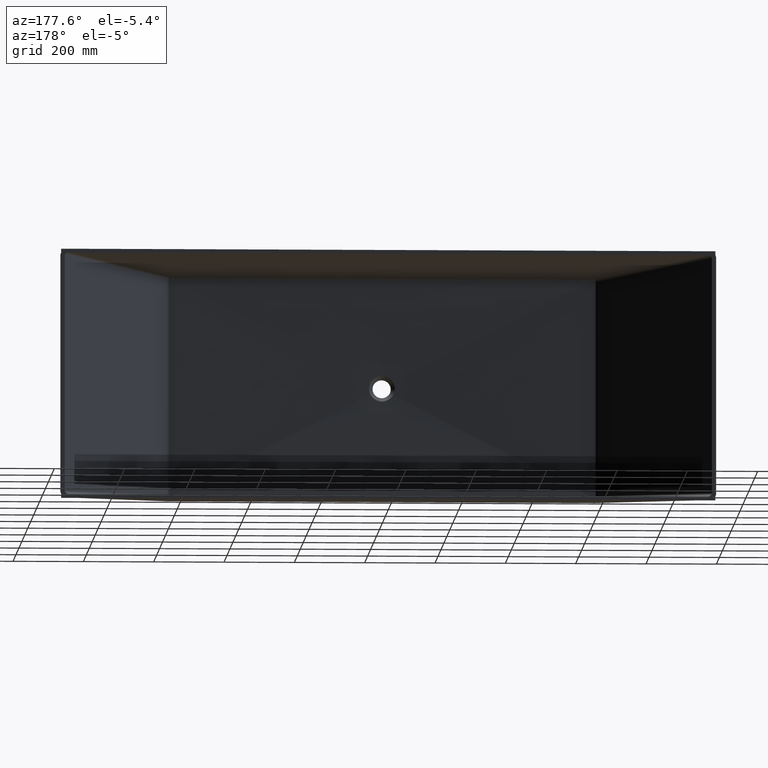
[diagram: clean part render]
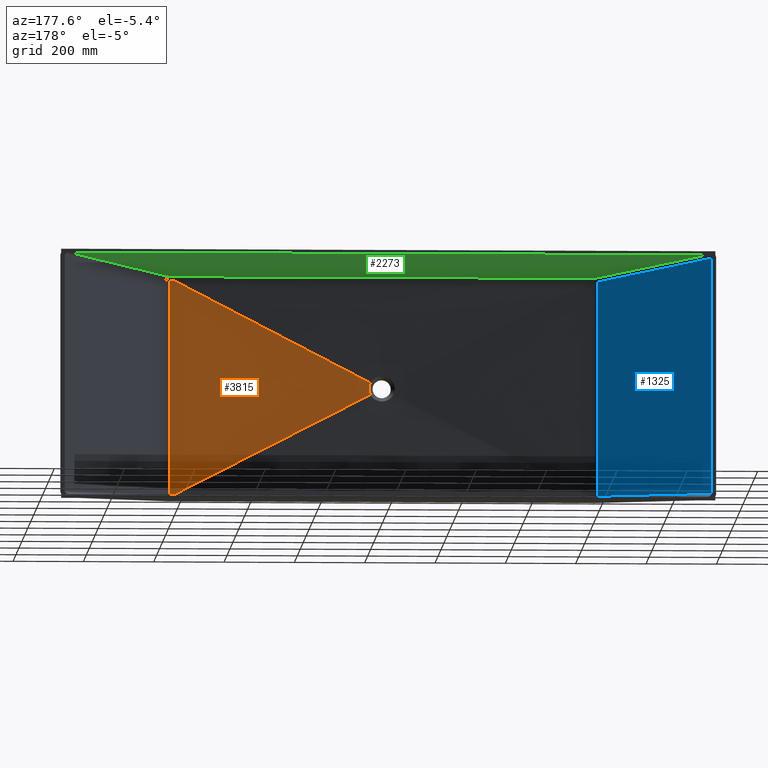
[diagram: same view with three faces highlighted in distinct colors, each labeled with its STEP entity id]
A machine part, auxiliary view with three faces highlighted in distinct colors.
Their STEP definitions:

[orange] entity #3815 — the highlighted face is a freeform B-spline surface patch.
#22 = CARTESIAN_POINT ( 'NONE',  ( 24.01391568218081600, -435.0000000000000000, -10.16292367194582800 ) ) ;
#42 = B_SPLINE_CURVE_WITH_KNOTS ( 'NONE', 3,
 ( #1183, #1118, #1220, #1251 ),
 .UNSPECIFIED., .F., .F.,
 ( 4, 4 ),
 ( 0.0000000000000000000, 0.01315349915786893900 ),
 .UNSPECIFIED. ) ;
#46 = CARTESIAN_POINT ( 'NONE',  ( 609.9999999999998900, -422.9999999999999400, -262.5000000000001700 ) ) ;
#238 = EDGE_CURVE ( 'NONE', #4479, #9330, #2665, .T. ) ;
#259 = VECTOR ( 'NONE', #3028, 1000.000000000000000 ) ;
#299 = EDGE_CURVE ( 'NONE', #4553, #4738, #42, .T. ) ;
#453 = CARTESIAN_POINT ( 'NONE',  ( 23.10164707771468400, -435.0000000000000000, -11.92953906472151500 ) ) ;
#498 = CARTESIAN_POINT ( 'NONE',  ( 609.9999999999998900, -422.9999999999999400, -210.0000000000002600 ) ) ;
#519 = CARTESIAN_POINT ( 'NONE',  ( 610.0000000000000000, -423.0000000000000000, -315.0000000000000600 ) ) ;
#628 = CARTESIAN_POINT ( 'NONE',  ( 600.6759767981827700, -423.1906750330636000, 305.6704868298778600 ) ) ;
#694 = CARTESIAN_POINT ( 'NONE',  ( 596.2923977191823000, -423.2802975624949800, 305.6641583615465300 ) ) ;
#705 = CARTESIAN_POINT ( 'NONE',  ( 316.5508235388572900, -429.0000000000000000, 163.4647695323607200 ) ) ;
#965 = CARTESIAN_POINT ( 'NONE',  ( 605.0595555139058200, -423.1010349011097600, 305.6768175687280400 ) ) ;
#1030 = CARTESIAN_POINT ( 'NONE',  ( 591.9088182426788800, -423.3699008184414100, 305.6578323712194000 ) ) ;
#1118 = CARTESIAN_POINT ( 'NONE',  ( 596.2923977191825300, -423.2802975624949800, -305.6641583615467000 ) ) ;
#1183 = CARTESIAN_POINT ( 'NONE',  ( 591.9088182426789900, -423.3699008184414100, -305.6578323712195700 ) ) ;
#1216 = B_SPLINE_SURFACE_WITH_KNOTS ( 'NONE', 3, 1, ( 
 ( #519, #453 ),
 ( #46, #22 ),
 ( #498, #5540 ),
 ( #3988, #4035 ),
 ( #3937, #3999 ),
 ( #3838, #3392 ),
 ( #2892, #2249 ),
 ( #2216, #2084 ),
 ( #2921, #1759 ),
 ( #1829, #2046 ) ),
 .UNSPECIFIED., .F., .F., .F.,
 ( 4, 2, 2, 2, 4 ),
 ( 2, 2 ),
 ( 0.0000000000000000000, 0.2500000000000000000, 0.5000000000000000000, 0.7500000000000000000, 1.000000000000000000 ),
 ( 0.0000000000000000000, 1.000000000000000000 ),
 .UNSPECIFIED. ) ;
#1220 = CARTESIAN_POINT ( 'NONE',  ( 600.6759767981831100, -423.1906750330637100, -305.6704868298778000 ) ) ;
#1251 = CARTESIAN_POINT ( 'NONE',  ( 605.0595555139058200, -423.1010349011096400, -305.6768175687285000 ) ) ;
#1682 = CARTESIAN_POINT ( 'NONE',  ( 605.0595813665609100, -423.1010541363270900, -299.0101509021396900 ) ) ;
#1759 = CARTESIAN_POINT ( 'NONE',  ( 24.01391568218081900, -435.0000000000000600, 10.16292367194583300 ) ) ;
#1771 = CARTESIAN_POINT ( 'NONE',  ( 32.58871671826185700, -434.8060308567832000, -16.82727839159560200 ) ) ;
#1801 = CARTESIAN_POINT ( 'NONE',  ( 32.68176677456547500, -434.8055025274268800, -16.64594310408847400 ) ) ;
#1829 = CARTESIAN_POINT ( 'NONE',  ( 609.9999999999998900, -423.0000000000000000, 314.9999999999999400 ) ) ;
#1834 = CARTESIAN_POINT ( 'NONE',  ( 32.77263600347314600, -434.8049895906376000, -16.46515320661993400 ) ) ;
#1880 = CARTESIAN_POINT ( 'NONE',  ( 33.21405415646994200, -434.8025062426305600, -15.56854854381626700 ) ) ;
#1908 = CARTESIAN_POINT ( 'NONE',  ( 33.54313082061560900, -434.8005680788249400, -14.84154829948019700 ) ) ;
#1935 = CARTESIAN_POINT ( 'NONE',  ( 34.15349068294806800, -434.7969492111485600, -13.36732099854193300 ) ) ;
#1968 = CARTESIAN_POINT ( 'NONE',  ( 34.43503184951854500, -434.7952465067868400, -12.61961978903765700 ) ) ;
#2001 = CARTESIAN_POINT ( 'NONE',  ( 34.95028566904212400, -434.7920864695826100, -11.10280464459872500 ) ) ;
#2010 = CARTESIAN_POINT ( 'NONE',  ( 35.18383985234343900, -434.7906298428312100, -10.33426912476443400 ) ) ;
#2030 = CARTESIAN_POINT ( 'NONE',  ( 35.60258042623172500, -434.7879845127755500, -8.772952209541932300 ) ) ;
#2039 = CARTESIAN_POINT ( 'NONE',  ( 35.78612721127001400, -434.7868028165489100, -7.985654384829210500 ) ) ;
#2046 = CARTESIAN_POINT ( 'NONE',  ( 23.10164707771468400, -435.0000000000000000, 11.92953906472151900 ) ) ;
#2060 = CARTESIAN_POINT ( 'NONE',  ( 36.10004100080402600, -434.7847614373145000, -6.407541507283200500 ) ) ;
#2068 = CARTESIAN_POINT ( 'NONE',  ( 36.23093372841220400, -434.7839000089154500, -5.614772488064559800 ) ) ;
#2084 = CARTESIAN_POINT ( 'NONE',  ( 24.74699829735557400, -435.0000000000000600, 8.239641495017378900 ) ) ;
#2099 = CARTESIAN_POINT ( 'NONE',  ( 36.54549878893445200, -434.7818255283726800, -3.227383490866709600 ) ) ;
#2123 = CARTESIAN_POINT ( 'NONE',  ( 36.65172605618238300, -434.7811264942853900, -1.622432165562087700 ) ) ;
#2149 = CARTESIAN_POINT ( 'NONE',  ( 36.65199480322283400, -434.7811246006614900, 0.8049582346374675200 ) ) ;
#2178 = CARTESIAN_POINT ( 'NONE',  ( 36.62549584119773300, -434.7812970693098000, 1.612106930605401200 ) ) ;
#2216 = CARTESIAN_POINT ( 'NONE',  ( 609.9999999999998900, -422.9999999999999400, 209.9999999999997400 ) ) ;
#2242 = CARTESIAN_POINT ( 'NONE',  ( 36.51975175008981000, -434.7819937220051000, 3.222396168679883700 ) ) ;
#2249 = CARTESIAN_POINT ( 'NONE',  ( 25.74060215021656400, -435.0000000000000600, 4.210346498804791600 ) ) ;
#2270 = CARTESIAN_POINT ( 'NONE',  ( 36.44052426182272300, -434.7825178249666500, 4.025292197563964600 ) ) ;
#2307 = CARTESIAN_POINT ( 'NONE',  ( 36.22902078312147700, -434.7839126090627200, 5.628072070181834100 ) ) ;
#2310 = VECTOR ( 'NONE', #4126, 1000.000000000000000 ) ;
#2335 = CARTESIAN_POINT ( 'NONE',  ( 36.09663321535376200, -434.7847837713010200, 6.426895010883971100 ) ) ;
#2369 = CARTESIAN_POINT ( 'NONE',  ( 32.58871671826185700, -434.8060308567832000, -16.82727839159560200 ) ) ;
#2370 = CARTESIAN_POINT ( 'NONE',  ( 35.78230807487773300, -434.7868274681927700, 8.002582096386703400 ) ) ;
#2408 = CARTESIAN_POINT ( 'NONE',  ( 35.59997362686581100, -434.7880009972994300, 8.782708506575588100 ) ) ;
#2417 = EDGE_CURVE ( 'NONE', #4553, #5753, #8076, .T. ) ;
#2451 = CARTESIAN_POINT ( 'NONE',  ( 35.18606223180696400, -434.7906157873596800, 10.32594616354017000 ) ) ;
#2483 = CARTESIAN_POINT ( 'NONE',  ( 34.95443845159491800, -434.7920606474098100, 11.08939445931484100 ) ) ;
#2516 = CARTESIAN_POINT ( 'NONE',  ( 34.44208606439649100, -434.7952035890789900, 12.60001296658955300 ) ) ;
#2560 = CARTESIAN_POINT ( 'NONE',  ( 34.16135722456662200, -434.7969020058845300, 13.34718420244695400 ) ) ;
#2578 = CARTESIAN_POINT ( 'NONE',  ( 32.58868990967731300, -434.8060309630301400, 16.82733800474517600 ) ) ;
#2597 = CARTESIAN_POINT ( 'NONE',  ( 33.55039621837507700, -434.8005255517191500, 14.82510850821137200 ) ) ;
#2630 = CARTESIAN_POINT ( 'NONE',  ( 33.21976724747487700, -434.8024621704163300, 15.55657504652833400 ) ) ;
#2665 = B_SPLINE_CURVE_WITH_KNOTS ( 'NONE', 3,
 ( #965, #628, #694, #1030 ),
 .UNSPECIFIED., .F., .F.,
 ( 4, 4 ),
 ( 1.110223024625156500E-016, 0.01315349915786927100 ),
 .UNSPECIFIED. ) ;
#2698 = CARTESIAN_POINT ( 'NONE',  ( 32.77463653956241500, -434.8049811524447300, 16.46118220068504500 ) ) ;
#2711 = EDGE_CURVE ( 'NONE', #6784, #5753, #9089, .T. ) ;
#2786 = CARTESIAN_POINT ( 'NONE',  ( 32.58868990967731300, -434.8060309630301400, 16.82733800474517600 ) ) ;
#2795 = EDGE_CURVE ( 'NONE', #9330, #6784, #3987, .T. ) ;
#2892 = CARTESIAN_POINT ( 'NONE',  ( 609.9999999999998900, -422.9999999999999400, 104.9999999999996300 ) ) ;
#2897 = ORIENTED_EDGE ( 'NONE', *, *, #238, .F. ) ;
#2921 = CARTESIAN_POINT ( 'NONE',  ( 609.9999999999998900, -422.9999999999999400, 262.4999999999998300 ) ) ;
#3028 = DIRECTION ( 'NONE',  ( -0.8883782963643165300, -0.01816420084208932000, -0.4587527268110815300 ) ) ;
#3212 = ORIENTED_EDGE ( 'NONE', *, *, #3479, .F. ) ;
#3392 = CARTESIAN_POINT ( 'NONE',  ( 25.99999999999999600, -435.0000000000000600, 2.105618542638344700 ) ) ;
#3416 = CARTESIAN_POINT ( 'NONE',  ( 32.68280483020150500, -434.8054933619104100, 16.64393626190645400 ) ) ;
#3479 = EDGE_CURVE ( 'NONE', #4738, #4479, #6001, .T. ) ;
#3815 = ADVANCED_FACE ( 'NONE', ( #6794 ), #1216, .F. ) ;
#3838 = CARTESIAN_POINT ( 'NONE',  ( 609.9999999999998900, -422.9999999999999400, 52.49999999999959500 ) ) ;
#3937 = CARTESIAN_POINT ( 'NONE',  ( 609.9999999999998900, -422.9999999999999400, -52.50000000000039100 ) ) ;
#3987 = LINE ( 'NONE', #705, #259 ) ;
#3988 = CARTESIAN_POINT ( 'NONE',  ( 609.9999999999998900, -422.9999999999999400, -105.0000000000003700 ) ) ;
#3999 = CARTESIAN_POINT ( 'NONE',  ( 26.00000000000000400, -435.0000000000000600, -2.105618542638341100 ) ) ;
#4035 = CARTESIAN_POINT ( 'NONE',  ( 25.74060215021656400, -435.0000000000000600, -4.210346498804788100 ) ) ;
#4126 = DIRECTION ( 'NONE',  ( -0.8883782963643165300, -0.01816420084208931700, 0.4587527268110815300 ) ) ;
#4156 = CARTESIAN_POINT ( 'NONE',  ( 316.5508235388573400, -429.0000000000000000, -163.4647695323608000 ) ) ;
#4244 = CARTESIAN_POINT ( 'NONE',  ( 605.0595555139058200, -423.1010349011096400, -305.6768175687285000 ) ) ;
#4479 = VERTEX_POINT ( 'NONE', #6055 ) ;
#4553 = VERTEX_POINT ( 'NONE', #5220 ) ;
#4738 = VERTEX_POINT ( 'NONE', #4244 ) ;
#4941 = ORIENTED_EDGE ( 'NONE', *, *, #2795, .F. ) ;
#5020 = ORIENTED_EDGE ( 'NONE', *, *, #2417, .T. ) ;
#5220 = CARTESIAN_POINT ( 'NONE',  ( 591.9088182426789900, -423.3699008184414100, -305.6578323712195700 ) ) ;
#5540 = CARTESIAN_POINT ( 'NONE',  ( 24.74699829735557400, -435.0000000000000000, -8.239641495017373500 ) ) ;
#5753 = VERTEX_POINT ( 'NONE', #2369 ) ;
#6001 = B_SPLINE_CURVE_WITH_KNOTS ( 'NONE', 3,
 ( #9386, #1682, #9285, #9259, #9225, #9191, #9025, #8931, #8710, #8682, #8649, #8611, #8545, #8507, #8477, #8436, #8256, #8232, #8207 ),
 .UNSPECIFIED., .F., .F.,
 ( 4, 3, 3, 3, 3, 3, 4 ),
 ( 0.0000000000000000000, 0.02000000000000011100, 0.1000000000000227800, 0.2600000000002875000, 0.4356768175696065200, 0.4538347707868971000, 0.6113536351403630100 ),
 .UNSPECIFIED. ) ;
#6007 = CARTESIAN_POINT ( 'NONE',  ( 591.9088182426788800, -423.3699008184414100, 305.6578323712194000 ) ) ;
#6055 = CARTESIAN_POINT ( 'NONE',  ( 605.0595555139058200, -423.1010349011097600, 305.6768175687280400 ) ) ;
#6784 = VERTEX_POINT ( 'NONE', #2578 ) ;
#6794 = FACE_OUTER_BOUND ( 'NONE', #9118, .T. ) ;
#8076 = LINE ( 'NONE', #4156, #2310 ) ;
#8207 = CARTESIAN_POINT ( 'NONE',  ( 605.0595555139058200, -423.1010349011097600, 305.6768175687280400 ) ) ;
#8232 = CARTESIAN_POINT ( 'NONE',  ( 605.0597591279491800, -423.1011863965901500, 253.1705294515536500 ) ) ;
#8256 = CARTESIAN_POINT ( 'NONE',  ( 605.0599223373900500, -423.1013076174888300, 200.6642413340916000 ) ) ;
#8436 = CARTESIAN_POINT ( 'NONE',  ( 605.0600306074744600, -423.1013879632402600, 148.1579532164769800 ) ) ;
#8477 = CARTESIAN_POINT ( 'NONE',  ( 605.0600430882851700, -423.1013972250795000, 142.1053021440664600 ) ) ;
#8507 = CARTESIAN_POINT ( 'NONE',  ( 605.0600548404137300, -423.1014059456749700, 136.0526510716535700 ) ) ;
#8545 = CARTESIAN_POINT ( 'NONE',  ( 605.0600658546776500, -423.1014141183497900, 129.9999999992386400 ) ) ;
#8611 = CARTESIAN_POINT ( 'NONE',  ( 605.0601724168443500, -423.1014931883577200, 71.44106080968056500 ) ) ;
#8649 = CARTESIAN_POINT ( 'NONE',  ( 605.0602090730581000, -423.1015203610902500, 12.88212161985072300 ) ) ;
#8682 = CARTESIAN_POINT ( 'NONE',  ( 605.0601706682789400, -423.1014918763872900, -45.67681756983817800 ) ) ;
#8710 = CARTESIAN_POINT ( 'NONE',  ( 605.0601356906152000, -423.1014659335649000, -99.01015090319847900 ) ) ;
#8900 = ORIENTED_EDGE ( 'NONE', *, *, #299, .F. ) ;
#8931 = CARTESIAN_POINT ( 'NONE',  ( 605.0600394917678400, -423.1013946098386200, -152.3434842365365400 ) ) ;
#9025 = CARTESIAN_POINT ( 'NONE',  ( 605.0598907322631700, -423.1012841139104800, -205.6768175695926900 ) ) ;
#9089 = B_SPLINE_CURVE_WITH_KNOTS ( 'NONE', 3,
 ( #2786, #3416, #2698, #2630, #2597, #2560, #2516, #2483, #2451, #2408, #2370, #2335, #2307, #2270, #2242, #2178, #2149, #2123, #2099, #2068, #2060, #2039, #2030, #2010, #2001, #1968, #1935, #1908, #1880, #1834, #1801, #1771 ),
 .UNSPECIFIED., .F., .F.,
 ( 4, 2, 2, 2, 2, 2, 2, 2, 2, 2, 2, 2, 2, 2, 2, 4 ),
 ( 0.0000000000000000000, 0.01747615199816586100, 0.08640965224631924600, 0.1553431524944726100, 0.2242766527426252000, 0.2932101529907785700, 0.3621436532389320000, 0.4310771534870845900, 0.5000106537352379000, 0.6378776542315439700, 0.7068111544796973300, 0.7757446547278507000, 0.8446781549760040700, 0.9136116552241574400, 0.9825451554723100300, 1.000000000000000000 ),
 .UNSPECIFIED. ) ;
#9118 = EDGE_LOOP ( 'NONE', ( #3212, #8900, #5020, #9218, #4941, #2897 ) ) ;
#9191 = CARTESIAN_POINT ( 'NONE',  ( 605.0598163525107800, -423.1012288659463800, -232.3434842361022600 ) ) ;
#9218 = ORIENTED_EDGE ( 'NONE', *, *, #2711, .F. ) ;
#9225 = CARTESIAN_POINT ( 'NONE',  ( 605.0597291694075500, -423.1011640714742200, -259.0101509025598100 ) ) ;
#9259 = CARTESIAN_POINT ( 'NONE',  ( 605.0596310882348200, -423.1010911211799900, -285.6768175689501800 ) ) ;
#9285 = CARTESIAN_POINT ( 'NONE',  ( 605.0596065679416100, -423.1010728836064300, -292.3434842355468400 ) ) ;
#9330 = VERTEX_POINT ( 'NONE', #6007 ) ;
#9386 = CARTESIAN_POINT ( 'NONE',  ( 605.0595555139058200, -423.1010349011096400, -305.6768175687285000 ) ) ;

[blue] entity #1325 — the highlighted planar face has unit normal (-0.8066, -0.5911, -0).
#6 = VERTEX_POINT ( 'NONE', #6451 ) ;
#222 = CARTESIAN_POINT ( 'NONE',  ( -919.9999999999997700, 0.0000000000000000000, 345.0000000000000600 ) ) ;
#1070 = CARTESIAN_POINT ( 'NONE',  ( -919.9999999999997700, 0.0000000000000000000, 335.3941128546785000 ) ) ;
#1088 = CARTESIAN_POINT ( 'NONE',  ( -612.9206162766555500, -419.0147719837891600, -99.01012126310614300 ) ) ;
#1240 = EDGE_CURVE ( 'NONE', #9045, #6, #6413, .T. ) ;
#1325 = ADVANCED_FACE ( 'NONE', ( #1339 ), #2212, .F. ) ;
#1339 = FACE_OUTER_BOUND ( 'NONE', #5348, .T. ) ;
#1537 = EDGE_CURVE ( 'NONE', #6, #2153, #3638, .T. ) ;
#1553 = CARTESIAN_POINT ( 'NONE',  ( -920.3237599181362600, 0.4417756302314382300, 335.4254444596594500 ) ) ;
#1853 = ORIENTED_EDGE ( 'NONE', *, *, #5873, .T. ) ;
#2017 = DIRECTION ( 'NONE',  ( 0.5901508273742233100, -0.8052703225138596600, 0.05711137039105361500 ) ) ;
#2076 = ORIENTED_EDGE ( 'NONE', *, *, #7809, .F. ) ;
#2153 = VERTEX_POINT ( 'NONE', #1070 ) ;
#2212 = PLANE ( 'NONE',  #8859 ) ;
#2344 = CARTESIAN_POINT ( 'NONE',  ( -897.0677774008946700, -31.29138761103701000, -333.1748655063779000 ) ) ;
#3036 = VECTOR ( 'NONE', #7399, 1000.000000000000200 ) ;
#3335 = CARTESIAN_POINT ( 'NONE',  ( -612.9207287862283200, -419.0146184626623300, 178.1077373571976900 ) ) ;
#3638 = LINE ( 'NONE', #1553, #3036 ) ;
#3650 = CARTESIAN_POINT ( 'NONE',  ( -612.9209610645317500, -419.0143015151709800, -299.0101212624843500 ) ) ;
#4118 = CARTESIAN_POINT ( 'NONE',  ( -612.9209757690658800, -419.0142814505968500, 305.6767879291041900 ) ) ;
#4134 = CARTESIAN_POINT ( 'NONE',  ( -612.9208274829852600, -419.0144837893456000, -232.3434545961924000 ) ) ;
#4144 = CARTESIAN_POINT ( 'NONE',  ( -612.9208770210273100, -419.0144161938883400, -259.0101212627346300 ) ) ;
#4154 = CARTESIAN_POINT ( 'NONE',  ( -612.9209467327535800, -419.0143210711135000, -292.3434545958617200 ) ) ;
#4270 = CARTESIAN_POINT ( 'NONE',  ( -612.9205732777916200, -419.0148306564324200, 7.656545404241127200 ) ) ;
#4406 = VERTEX_POINT ( 'NONE', #6082 ) ;
#4510 = CARTESIAN_POINT ( 'NONE',  ( -612.9208350808046400, -419.0144734219985600, 241.8922626432848800 ) ) ;
#4543 = LINE ( 'NONE', #9123, #7839 ) ;
#5019 = ORIENTED_EDGE ( 'NONE', *, *, #1240, .F. ) ;
#5348 = EDGE_LOOP ( 'NONE', ( #2076, #1853, #7791, #5019 ) ) ;
#5873 = EDGE_CURVE ( 'NONE', #4406, #2153, #4543, .T. ) ;
#6082 = CARTESIAN_POINT ( 'NONE',  ( -919.9999999999997700, 0.0000000000000000000, -335.3941128546783800 ) ) ;
#6413 = B_SPLINE_CURVE_WITH_KNOTS ( 'NONE', 3,
 ( #7177, #3650, #4154, #7254, #4144, #4134, #6980, #1088, #4270, #6857, #3335, #4510, #4118 ),
 .UNSPECIFIED., .F., .F.,
 ( 4, 3, 3, 3, 4 ),
 ( 3.330669073875469100E-016, 0.02000000000000006300, 0.1000000000000136500, 0.4200000000013851000, 0.6113535758602697300 ),
 .UNSPECIFIED. ) ;
#6451 = CARTESIAN_POINT ( 'NONE',  ( -612.9209757690658800, -419.0142814505968500, 305.6767879291041900 ) ) ;
#6796 = VECTOR ( 'NONE', #2017, 1000.000000000000200 ) ;
#6857 = CARTESIAN_POINT ( 'NONE',  ( -612.9206705934301500, -419.0146978676740400, 114.3232120710100800 ) ) ;
#6980 = CARTESIAN_POINT ( 'NONE',  ( -612.9207852417193900, -419.0145414282342800, -205.6767879296191700 ) ) ;
#7086 = DIRECTION ( 'NONE',  ( 0.0000000000000000000, 0.0000000000000000000, -1.000000000000000000 ) ) ;
#7124 = CARTESIAN_POINT ( 'NONE',  ( -612.9209757690661000, -419.0142814505968000, -305.6767879291043100 ) ) ;
#7177 = CARTESIAN_POINT ( 'NONE',  ( -612.9209757690661000, -419.0142814505968000, -305.6767879291043100 ) ) ;
#7254 = CARTESIAN_POINT ( 'NONE',  ( -612.9209327904083000, -419.0143400956684400, -285.6767879292367500 ) ) ;
#7399 = DIRECTION ( 'NONE',  ( -0.5901508273742233100, 0.8052703225138596600, 0.05711137039105402400 ) ) ;
#7791 = ORIENTED_EDGE ( 'NONE', *, *, #1537, .F. ) ;
#7809 = EDGE_CURVE ( 'NONE', #4406, #9045, #8775, .T. ) ;
#7839 = VECTOR ( 'NONE', #9209, 1000.000000000000000 ) ;
#8775 = LINE ( 'NONE', #2344, #6796 ) ;
#8859 = AXIS2_PLACEMENT_3D ( 'NONE', #222, #9646, #7086 ) ;
#9045 = VERTEX_POINT ( 'NONE', #7124 ) ;
#9123 = CARTESIAN_POINT ( 'NONE',  ( -919.9999999999997700, 0.0000000000000000000, 345.0000000000000600 ) ) ;
#9209 = DIRECTION ( 'NONE',  ( -0.0000000000000000000, -0.0000000000000000000, 1.000000000000000000 ) ) ;
#9646 = DIRECTION ( 'NONE',  ( -0.8065868224995662600, -0.5911156382384528100, -0.0000000000000000000 ) ) ;

[green] entity #2273 — the highlighted planar face has unit normal (0, -0.0707, 0.9975).
#109 = ORIENTED_EDGE ( 'NONE', *, *, #1264, .F. ) ;
#588 = ORIENTED_EDGE ( 'NONE', *, *, #8066, .F. ) ;
#754 = CARTESIAN_POINT ( 'NONE',  ( -604.8551075440717600, -413.8105679646192800, 315.6517327684666200 ) ) ;
#828 = CARTESIAN_POINT ( 'NONE',  ( 908.1205356032492100, 0.0000000000000000000, 345.0000000000000600 ) ) ;
#1122 = CARTESIAN_POINT ( 'NONE',  ( 592.1901443795183000, -414.0695042601208200, 315.6333684921899000 ) ) ;
#1202 = EDGE_LOOP ( 'NONE', ( #109, #4190, #4098, #588, #5343, #1731 ) ) ;
#1264 = EDGE_CURVE ( 'NONE', #5505, #2172, #1542, .T. ) ;
#1315 = CARTESIAN_POINT ( 'NONE',  ( 505.0149746602886600, -414.0730390188823000, 315.6331178000792200 ) ) ;
#1380 = EDGE_CURVE ( 'NONE', #8750, #2770, #5049, .T. ) ;
#1381 = CARTESIAN_POINT ( 'NONE',  ( 417.8398049493720200, -414.0767967430808200, 315.6328512948169300 ) ) ;
#1414 = CARTESIAN_POINT ( 'NONE',  ( 330.6646352156019500, -414.0799546041483300, 315.6326273330390700 ) ) ;
#1542 = LINE ( 'NONE', #3938, #7973 ) ;
#1545 = CARTESIAN_POINT ( 'NONE',  ( -908.1205356032485300, 0.0000000000000000000, 345.0000000000000600 ) ) ;
#1699 = CARTESIAN_POINT ( 'NONE',  ( -592.1901443795268300, -414.0695042601208200, 315.6333684921899600 ) ) ;
#1731 = ORIENTED_EDGE ( 'NONE', *, *, #9625, .F. ) ;
#1799 = CARTESIAN_POINT ( 'NONE',  ( -220.4430901924269800, -414.0839473044420600, 315.6323441628054500 ) ) ;
#1865 = CARTESIAN_POINT ( 'NONE',  ( 220.4430901929374600, -414.0839473044422300, 315.6323441628055100 ) ) ;
#1906 = CARTESIAN_POINT ( 'NONE',  ( -5.912365160427438000E-014, -414.0867623682308900, 315.6321445128913300 ) ) ;
#1924 = CARTESIAN_POINT ( 'NONE',  ( 110.2215450953446200, -414.0867623682308900, 315.6321445128913300 ) ) ;
#1976 = CARTESIAN_POINT ( 'NONE',  ( -110.2215450950894400, -414.0867623682308900, 315.6321445128913300 ) ) ;
#2091 = B_SPLINE_CURVE_WITH_KNOTS ( 'NONE', 3,
 ( #4233, #4219, #4135, #4115 ),
 .UNSPECIFIED., .F., .F.,
 ( 4, 4 ),
 ( 1.777223989483336500E-015, 0.01266762318712936900 ),
 .UNSPECIFIED. ) ;
#2172 = VERTEX_POINT ( 'NONE', #754 ) ;
#2273 = ADVANCED_FACE ( 'NONE', ( #3027 ), #8239, .F. ) ;
#2770 = VERTEX_POINT ( 'NONE', #828 ) ;
#2952 = VERTEX_POINT ( 'NONE', #5053 ) ;
#3027 = FACE_OUTER_BOUND ( 'NONE', #1202, .T. ) ;
#3518 = VECTOR ( 'NONE', #5857, 1000.000000000000100 ) ;
#3938 = CARTESIAN_POINT ( 'NONE',  ( -271.4263734402572400, -868.7794535320825800, 283.3844359197103100 ) ) ;
#3979 = DIRECTION ( 'NONE',  ( 0.5901508273742233100, -0.8052703225138597700, -0.05711137039105403800 ) ) ;
#4098 = ORIENTED_EDGE ( 'NONE', *, *, #1380, .F. ) ;
#4115 = CARTESIAN_POINT ( 'NONE',  ( -592.1901443795268300, -414.0695042601208200, 315.6333684921899600 ) ) ;
#4135 = CARTESIAN_POINT ( 'NONE',  ( -596.4117991235675600, -413.9832094818259500, 315.6394886892321700 ) ) ;
#4190 = ORIENTED_EDGE ( 'NONE', *, *, #4349, .T. ) ;
#4219 = CARTESIAN_POINT ( 'NONE',  ( -600.6334535016164900, -413.8968968867879400, 315.6456101498731100 ) ) ;
#4233 = CARTESIAN_POINT ( 'NONE',  ( -604.8551075440717600, -413.8105679646192800, 315.6517327684666200 ) ) ;
#4349 = EDGE_CURVE ( 'NONE', #5505, #2770, #9341, .T. ) ;
#4485 = CARTESIAN_POINT ( 'NONE',  ( -330.6646352148362100, -414.0799546041485500, 315.6326273330390700 ) ) ;
#4544 = CARTESIAN_POINT ( 'NONE',  ( -417.8398049488643000, -414.0767967430814500, 315.6328512948168200 ) ) ;
#5049 = LINE ( 'NONE', #9635, #3518 ) ;
#5053 = CARTESIAN_POINT ( 'NONE',  ( 592.1901443795183000, -414.0695042601208200, 315.6333684921899000 ) ) ;
#5343 = ORIENTED_EDGE ( 'NONE', *, *, #8092, .F. ) ;
#5505 = VERTEX_POINT ( 'NONE', #1545 ) ;
#5527 = AXIS2_PLACEMENT_3D ( 'NONE', #8083, #5975, #9003 ) ;
#5615 = CARTESIAN_POINT ( 'NONE',  ( 604.8551075440705100, -413.8105679646208700, 315.6517327684665600 ) ) ;
#5676 = CARTESIAN_POINT ( 'NONE',  ( -505.0149746600390600, -414.0730390188825300, 315.6331178000792200 ) ) ;
#5721 = CARTESIAN_POINT ( 'NONE',  ( 600.6334535016117100, -413.8968968867880600, 315.6456101498731100 ) ) ;
#5830 = CARTESIAN_POINT ( 'NONE',  ( -592.1901443795268300, -414.0695042601208200, 315.6333684921899600 ) ) ;
#5857 = DIRECTION ( 'NONE',  ( 0.5901508273742236400, 0.8052703225138593300, 0.05711137039105401700 ) ) ;
#5935 = CARTESIAN_POINT ( 'NONE',  ( 592.1901443795183000, -414.0695042601208200, 315.6333684921899000 ) ) ;
#5975 = DIRECTION ( 'NONE',  ( 0.0000000000000000000, -0.07074428964086769400, 0.9974944839362316400 ) ) ;
#6183 = CARTESIAN_POINT ( 'NONE',  ( -919.9999999999997700, 0.0000000000000000000, 345.0000000000000600 ) ) ;
#6381 = CARTESIAN_POINT ( 'NONE',  ( 596.4117991235609700, -413.9832094818260700, 315.6394886892321700 ) ) ;
#6389 = DIRECTION ( 'NONE',  ( 1.000000000000000000, 0.0000000000000000000, 0.0000000000000000000 ) ) ;
#7002 = B_SPLINE_CURVE_WITH_KNOTS ( 'NONE', 3,
 ( #5935, #6381, #5721, #5615 ),
 .UNSPECIFIED., .F., .F.,
 ( 4, 4 ),
 ( 0.0000000000000000000, 0.01266762318713470300 ),
 .UNSPECIFIED. ) ;
#7019 = VERTEX_POINT ( 'NONE', #1699 ) ;
#7737 = B_SPLINE_CURVE_WITH_KNOTS ( 'NONE', 3,
 ( #5830, #5676, #4544, #4485, #1799, #1976, #1906, #1924, #1865, #1414, #1381, #1315, #1122 ),
 .UNSPECIFIED., .F., .F.,
 ( 4, 3, 3, 3, 4 ),
 ( 0.0000000000000000000, 0.2615255093745343900, 0.5921901446981101500, 0.9228547800224518000, 1.184380289396211900 ),
 .UNSPECIFIED. ) ;
#7973 = VECTOR ( 'NONE', #3979, 1000.000000000000100 ) ;
#8066 = EDGE_CURVE ( 'NONE', #2952, #8750, #7002, .T. ) ;
#8083 = CARTESIAN_POINT ( 'NONE',  ( 920.0000000000000000, 0.0000000000000000000, 345.0000000000000600 ) ) ;
#8092 = EDGE_CURVE ( 'NONE', #7019, #2952, #7737, .T. ) ;
#8206 = CARTESIAN_POINT ( 'NONE',  ( 604.8551075440705100, -413.8105679646208700, 315.6517327684665600 ) ) ;
#8239 = PLANE ( 'NONE',  #5527 ) ;
#8750 = VERTEX_POINT ( 'NONE', #8206 ) ;
#9003 = DIRECTION ( 'NONE',  ( -1.000000000000000000, 0.0000000000000000000, 0.0000000000000000000 ) ) ;
#9106 = VECTOR ( 'NONE', #6389, 1000.000000000000000 ) ;
#9341 = LINE ( 'NONE', #6183, #9106 ) ;
#9625 = EDGE_CURVE ( 'NONE', #2172, #7019, #2091, .T. ) ;
#9635 = CARTESIAN_POINT ( 'NONE',  ( 912.2578916931410000, 5.645489116207238000, 345.4003892990218100 ) ) ;